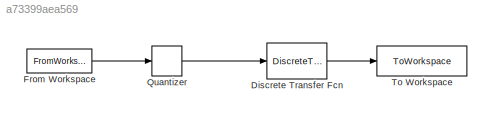
MODEL slx_a73399aea569
KIND model
CONFIG AbsTol = auto
CONFIG EnableMultiTasking = off
CONFIG FixedStep = auto
CONFIG MaxStep = auto
CONFIG MinStep = auto
CONFIG RelTol = 1e-3
CONFIG SampleTimeConstraint = Unconstrained
CONFIG SolverName = VariableStepAuto
CONFIG StartTime = 0.0
CONFIG StopTime = 10.0
BLOCK [DiscreteTransferFcn] Discrete Transfer Fcn
  Denominator = [a]
  InputPortMap = u0
  Numerator = [b]
BLOCK [FromWorkspace] From Workspace
  SampleTime = Ts
  VariableName = IN
BLOCK [Quantizer] Quantizer
  QuantizationInterval = Qstep
BLOCK [ToWorkspace] To Workspace
  FixptAsFi = on
  MaxDataPoints = inf
  SampleTime = Ts
  SaveFormat = Timeseries
  VariableName = direct_out
LINE Discrete Transfer Fcn:1 -> To Workspace:1
LINE From Workspace:1 -> Quantizer:1
LINE Quantizer:1 -> Discrete Transfer Fcn:1
